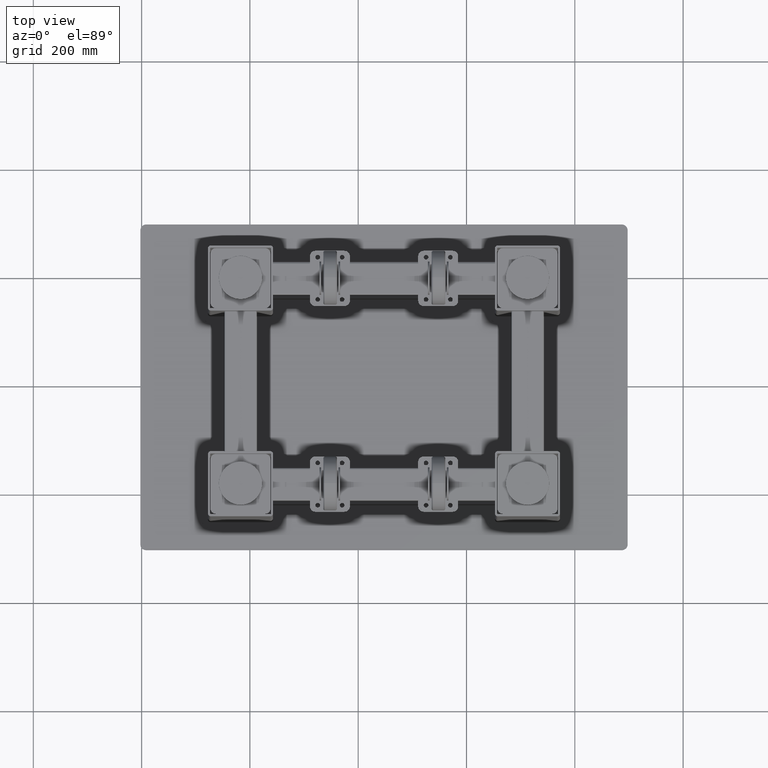
[diagram: clean part render]
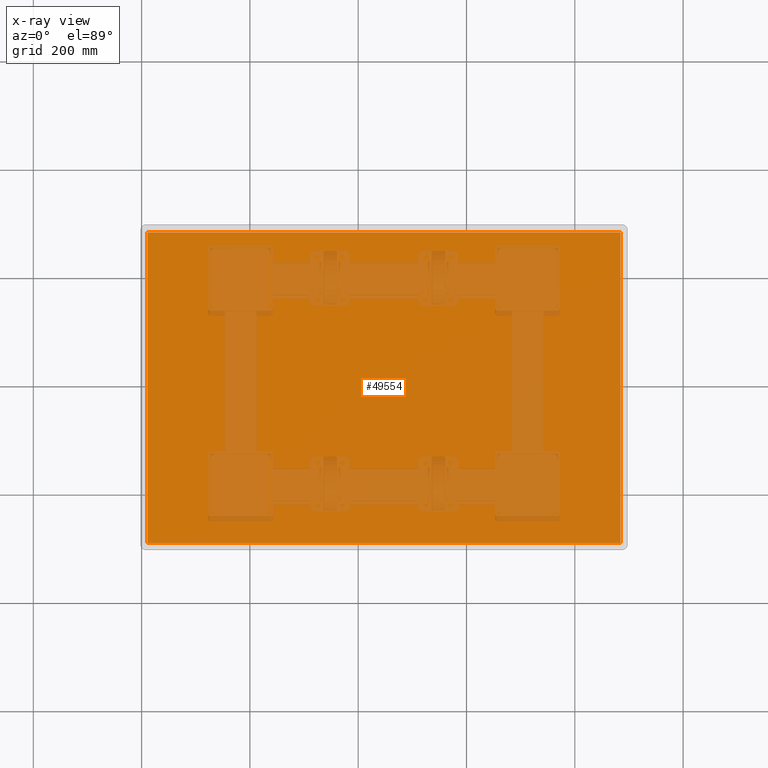
[diagram: x-ray — body ghosted, one internal face saturated and labeled with its STEP entity id]
A machine part, top view, then the same camera in x-ray: the body is ghosted and one INTERNAL B-rep face — a face not visible from any outside direction — is saturated and labeled: STEP entity #49554.
In plain terms, the highlighted planar face has unit normal (0, -0, 1).
Its self-contained STEP definition (entity closure, byte-faithful):
#6530 = VECTOR ( 'NONE', #77060, 1000.000000000000000 ) ;
#16158 = VECTOR ( 'NONE', #56689, 1000.000000000000000 ) ;
#17173 = CARTESIAN_POINT ( 'NONE',  ( -1714.357977528089577, -89.07558052434438878, -456.4999999999998863 ) ) ;
#17185 = CARTESIAN_POINT ( 'NONE',  ( -315.3579775280894637, -89.07558052434438878, -456.5000000000000568 ) ) ;
#26782 = LINE ( 'NONE', #17173, #6530 ) ;
#28593 = LINE ( 'NONE', #115921, #16158 ) ;
#35240 = DIRECTION ( 'NONE',  ( 1.224646799147353207E-16, -0.000000000000000000, 1.000000000000000000 ) ) ;
#42621 = VERTEX_POINT ( 'NONE', #117522 ) ;
#46731 = VERTEX_POINT ( 'NONE', #123759 ) ;
#49554 = ADVANCED_FACE ( 'NONE', ( #51842 ), #90009, .F. ) ;
#49917 = DIRECTION ( 'NONE',  ( -0.000000000000000000, -1.000000000000000000, -0.000000000000000000 ) ) ;
#51703 = ORIENTED_EDGE ( 'NONE', *, *, #114339, .F. ) ;
#51842 = FACE_OUTER_BOUND ( 'NONE', #74683, .T. ) ;
#56689 = DIRECTION ( 'NONE',  ( 0.000000000000000000, 1.000000000000000000, 0.000000000000000000 ) ) ;
#62246 = VERTEX_POINT ( 'NONE', #17185 ) ;
#63132 = VERTEX_POINT ( 'NONE', #103018 ) ;
#63831 = CARTESIAN_POINT ( 'NONE',  ( -1714.357977528089577, 484.9244194756556112, -456.4999999999998863 ) ) ;
#68983 = LINE ( 'NONE', #107894, #70738 ) ;
#70738 = VECTOR ( 'NONE', #49917, 1000.000000000000000 ) ;
#74037 = DIRECTION ( 'NONE',  ( 1.000000000000000000, 0.000000000000000000, -1.224646799147353207E-16 ) ) ;
#74458 = LINE ( 'NONE', #94229, #124171 ) ;
#74683 = EDGE_LOOP ( 'NONE', ( #121263, #51703, #92298, #84426 ) ) ;
#77060 = DIRECTION ( 'NONE',  ( 1.000000000000000000, 0.000000000000000000, -1.224646799147353207E-16 ) ) ;
#78578 = AXIS2_PLACEMENT_3D ( 'NONE', #63831, #35240, #74037 ) ;
#78742 = EDGE_CURVE ( 'NONE', #62246, #63132, #28593, .T. ) ;
#81020 = EDGE_CURVE ( 'NONE', #42621, #62246, #26782, .T. ) ;
#84426 = ORIENTED_EDGE ( 'NONE', *, *, #78742, .F. ) ;
#87131 = DIRECTION ( 'NONE',  ( -1.000000000000000000, -0.000000000000000000, 1.224646799147353207E-16 ) ) ;
#90009 = PLANE ( 'NONE',  #78578 ) ;
#92298 = ORIENTED_EDGE ( 'NONE', *, *, #106302, .F. ) ;
#94229 = CARTESIAN_POINT ( 'NONE',  ( -1714.357977528089577, 484.9244194756556112, -456.4999999999998863 ) ) ;
#103018 = CARTESIAN_POINT ( 'NONE',  ( -315.3579775280894637, 484.9244194756556112, -456.5000000000000568 ) ) ;
#106302 = EDGE_CURVE ( 'NONE', #63132, #46731, #74458, .T. ) ;
#107894 = CARTESIAN_POINT ( 'NONE',  ( -1189.357977528089577, 484.9244194756556112, -456.4999999999998863 ) ) ;
#114339 = EDGE_CURVE ( 'NONE', #46731, #42621, #68983, .T. ) ;
#115921 = CARTESIAN_POINT ( 'NONE',  ( -315.3579775280894637, 484.9244194756556112, -456.5000000000000568 ) ) ;
#117522 = CARTESIAN_POINT ( 'NONE',  ( -1189.357977528089577, -89.07558052434438878, -456.4999999999999432 ) ) ;
#121263 = ORIENTED_EDGE ( 'NONE', *, *, #81020, .F. ) ;
#123759 = CARTESIAN_POINT ( 'NONE',  ( -1189.357977528089577, 484.9244194756556112, -456.5000000000000000 ) ) ;
#124171 = VECTOR ( 'NONE', #87131, 1000.000000000000000 ) ;